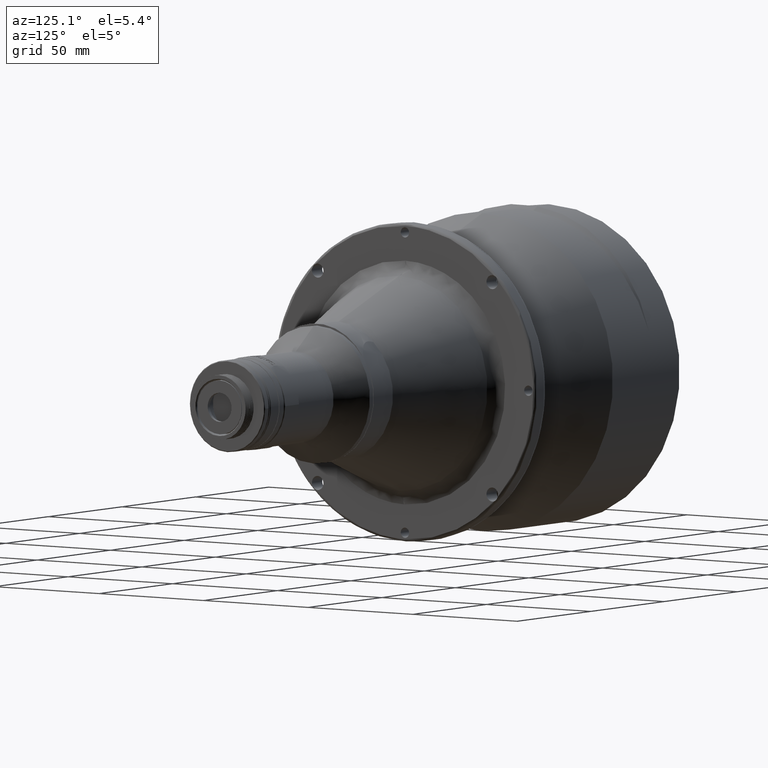
[diagram: clean part render]
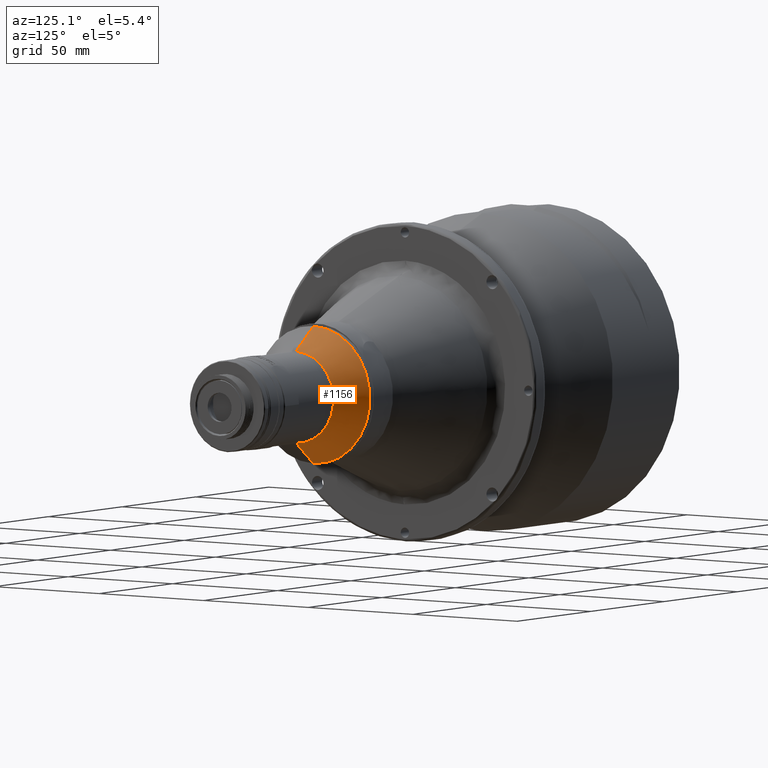
[diagram: same view with one face highlighted and labeled with its STEP entity id]
A machine part, auxiliary view. The second image highlights one B-rep face of the part: STEP entity #1156.
In plain terms, the highlighted conical surface has half-angle 37.001 deg.
Its self-contained STEP definition (entity closure, byte-faithful):
#880 = DIRECTION ( 'NONE',  ( -1.000000000000000000, 0.000000000000000000, 0.000000000000000000 ) ) ;
#1156 = ADVANCED_FACE ( 'NONE', ( #5421 ), #14389, .T. ) ;
#1653 = EDGE_CURVE ( 'NONE', #5532, #16148, #14964, .T. ) ;
#2529 = AXIS2_PLACEMENT_3D ( 'NONE', #11797, #2802, #15034 ) ;
#2802 = DIRECTION ( 'NONE',  ( -1.000000000000000000, 0.000000000000000000, 0.000000000000000000 ) ) ;
#2920 = CARTESIAN_POINT ( 'NONE',  ( 16.02089170700000764, 0.000000000000000000, 16.17499843900000300 ) ) ;
#3522 = ORIENTED_EDGE ( 'NONE', *, *, #16722, .F. ) ;
#3733 = CARTESIAN_POINT ( 'NONE',  ( 16.02089170700000764, 0.000000000000000000, -1.825001561000000105 ) ) ;
#3851 = VECTOR ( 'NONE', #7475, 1000.000000000000000 ) ;
#5228 = VERTEX_POINT ( 'NONE', #9252 ) ;
#5351 = EDGE_LOOP ( 'NONE', ( #7770, #17686, #3522, #17931 ) ) ;
#5375 = CIRCLE ( 'NONE', #2529, 18.00000000000000711 ) ;
#5418 = EDGE_CURVE ( 'NONE', #5228, #5532, #5375, .T. ) ;
#5421 = FACE_OUTER_BOUND ( 'NONE', #5351, .T. ) ;
#5532 = VERTEX_POINT ( 'NONE', #10792 ) ;
#5907 = CARTESIAN_POINT ( 'NONE',  ( 16.02089170700000764, 2.204364238465235822E-15, -19.82500156100000055 ) ) ;
#7475 = DIRECTION ( 'NONE',  ( -0.7986222800950003586, 0.000000000000000000, 0.6018325794902289472 ) ) ;
#7770 = ORIENTED_EDGE ( 'NONE', *, *, #5418, .T. ) ;
#8089 = CARTESIAN_POINT ( 'NONE',  ( 4.078034563999910489, 3.306546357697853733E-15, -28.82500156100000055 ) ) ;
#9252 = CARTESIAN_POINT ( 'NONE',  ( 16.02089170700000764, 0.000000000000000000, 16.17499843900000656 ) ) ;
#10792 = CARTESIAN_POINT ( 'NONE',  ( 16.02089170700000764, 2.755455298081544778E-15, -19.82500156100000410 ) ) ;
#11797 = CARTESIAN_POINT ( 'NONE',  ( 16.02089170700000764, 0.000000000000000000, -1.825001561000000105 ) ) ;
#12251 = CARTESIAN_POINT ( 'NONE',  ( 4.078034563999910489, 0.000000000000000000, -1.825001561000000105 ) ) ;
#13622 = EDGE_CURVE ( 'NONE', #5228, #19157, #19381, .T. ) ;
#14317 = CARTESIAN_POINT ( 'NONE',  ( 4.078034563999910489, 0.000000000000000000, 25.17499843899999945 ) ) ;
#14389 = CONICAL_SURFACE ( 'NONE', #16911, 18.00000000000000355, 0.6457938063370464166 ) ;
#14964 = LINE ( 'NONE', #5907, #18753 ) ;
#15034 = DIRECTION ( 'NONE',  ( 0.000000000000000000, 0.000000000000000000, 1.000000000000000000 ) ) ;
#15773 = DIRECTION ( 'NONE',  ( 0.000000000000000000, 0.000000000000000000, 1.000000000000000000 ) ) ;
#16148 = VERTEX_POINT ( 'NONE', #8089 ) ;
#16493 = DIRECTION ( 'NONE',  ( -1.000000000000000000, 0.000000000000000000, 0.000000000000000000 ) ) ;
#16722 = EDGE_CURVE ( 'NONE', #19157, #16148, #18173, .T. ) ;
#16882 = DIRECTION ( 'NONE',  ( 3.276699899067302333E-15, -1.000000000000000000, 0.000000000000000000 ) ) ;
#16911 = AXIS2_PLACEMENT_3D ( 'NONE', #3733, #880, #15773 ) ;
#17638 = DIRECTION ( 'NONE',  ( -0.7986222800950003586, 7.370323420953038930E-17, -0.6018325794902289472 ) ) ;
#17686 = ORIENTED_EDGE ( 'NONE', *, *, #1653, .T. ) ;
#17931 = ORIENTED_EDGE ( 'NONE', *, *, #13622, .F. ) ;
#18173 = CIRCLE ( 'NONE', #18495, 27.00000000000000000 ) ;
#18495 = AXIS2_PLACEMENT_3D ( 'NONE', #12251, #16493, #16882 ) ;
#18753 = VECTOR ( 'NONE', #17638, 1000.000000000000000 ) ;
#19157 = VERTEX_POINT ( 'NONE', #14317 ) ;
#19381 = LINE ( 'NONE', #2920, #3851 ) ;